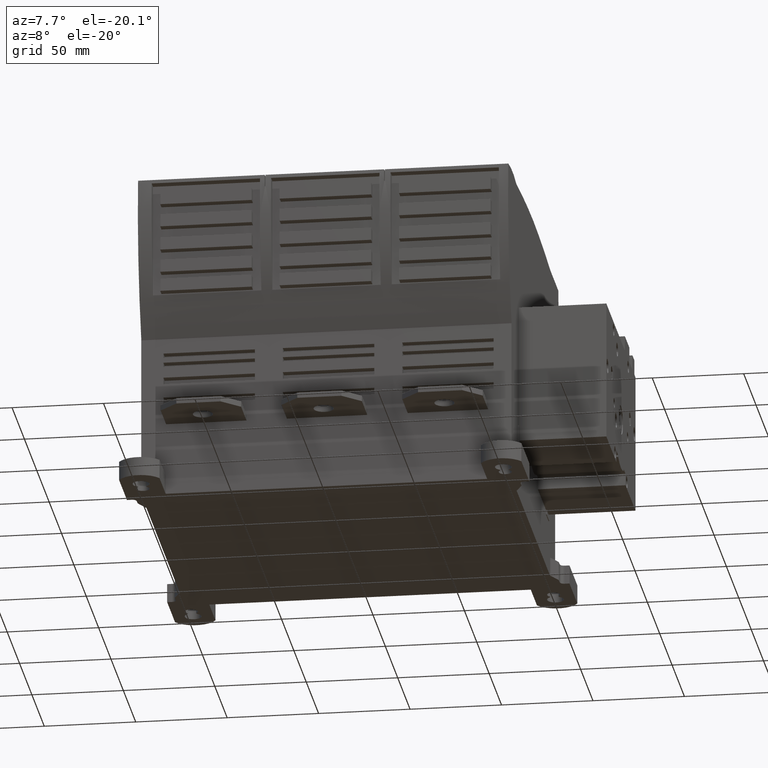
[diagram: clean part render]
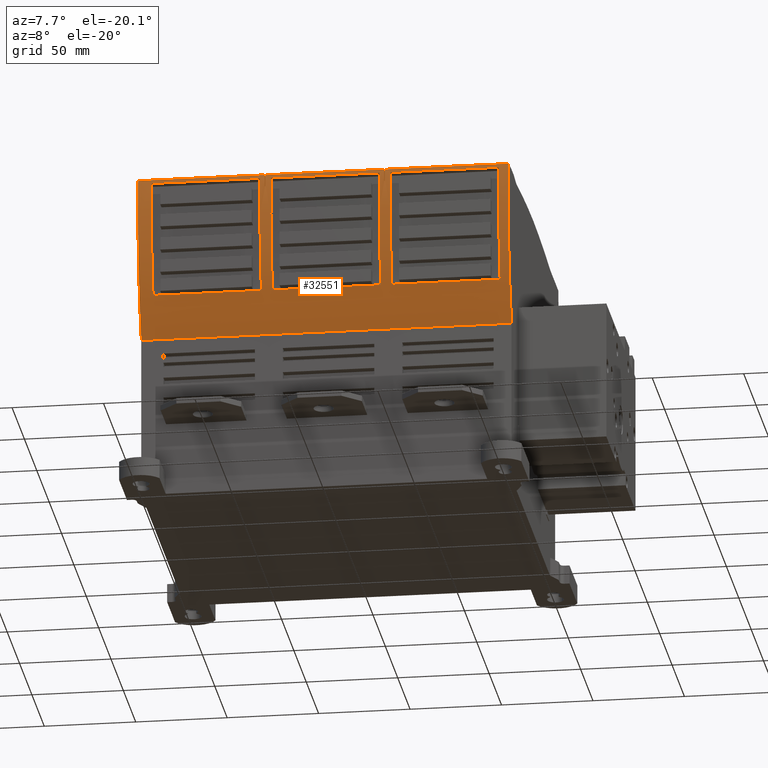
[diagram: same view with one face highlighted and labeled with its STEP entity id]
A machine part, auxiliary view. The second image highlights one B-rep face of the part: STEP entity #32551.
In plain terms, the highlighted cylindrical surface (partial cylindrical patch) has radius 180.086 mm, axis along (1, 0, 0).
Its self-contained STEP definition (entity closure, byte-faithful):
#1404=CARTESIAN_POINT('',(-1.01213E2,7.798528822828E1,6.952712063808E1));
#1405=DIRECTION('',(-1.E0,0.E0,0.E0));
#1406=DIRECTION('',(0.E0,-9.224664228662E-1,-3.860773221576E-1));
#1407=AXIS2_PLACEMENT_3D('',#1404,#1405,#1406);
#7042=DIRECTION('',(-1.E0,0.E0,0.E0));
#7043=VECTOR('',#7042,6.9207E1);
#7044=CARTESIAN_POINT('',(-3.2006E1,-1.01214E2,8.7376E1));
#7045=LINE('',#7044,#7043);
#7060=DIRECTION('',(1.E0,0.E0,0.E0));
#7061=VECTOR('',#7060,5.9278E1);
#7062=CARTESIAN_POINT('',(3.6782E1,-9.5928E1,2.278168691857E1));
#7063=LINE('',#7062,#7061);
#7064=CARTESIAN_POINT('',(9.606E1,7.798528822828E1,6.952712063808E1));
#7065=DIRECTION('',(1.E0,0.E0,0.E0));
#7066=DIRECTION('',(0.E0,-9.961198313149E-1,8.800728186488E-2));
#7067=AXIS2_PLACEMENT_3D('',#7064,#7065,#7066);
#7069=DIRECTION('',(1.E0,0.E0,0.E0));
#7070=VECTOR('',#7069,5.9278E1);
#7071=CARTESIAN_POINT('',(3.6782E1,-1.014019477139E2,8.5376E1));
#7072=LINE('',#7071,#7070);
#7073=CARTESIAN_POINT('',(3.6782E1,7.798528822828E1,6.952712063808E1));
#7074=DIRECTION('',(1.E0,0.E0,0.E0));
#7075=DIRECTION('',(0.E0,-9.961198313149E-1,8.800728186488E-2));
#7076=AXIS2_PLACEMENT_3D('',#7073,#7074,#7075);
#7078=DIRECTION('',(1.E0,0.E0,0.E0));
#7079=VECTOR('',#7078,5.9278E1);
#7080=CARTESIAN_POINT('',(-2.8498E1,-9.5928E1,2.278168691857E1));
#7081=LINE('',#7080,#7079);
#7082=CARTESIAN_POINT('',(3.078E1,7.798528822828E1,6.952712063808E1));
#7083=DIRECTION('',(1.E0,0.E0,0.E0));
#7084=DIRECTION('',(0.E0,-9.961198313149E-1,8.800728186488E-2));
#7085=AXIS2_PLACEMENT_3D('',#7082,#7083,#7084);
#7087=DIRECTION('',(1.E0,0.E0,0.E0));
#7088=VECTOR('',#7087,5.9278E1);
#7089=CARTESIAN_POINT('',(-2.8498E1,-1.014019477139E2,8.5376E1));
#7090=LINE('',#7089,#7088);
#7091=CARTESIAN_POINT('',(-2.8498E1,7.798528822828E1,6.952712063808E1));
#7092=DIRECTION('',(1.E0,0.E0,0.E0));
#7093=DIRECTION('',(0.E0,-9.961198313149E-1,8.800728186488E-2));
#7094=AXIS2_PLACEMENT_3D('',#7091,#7092,#7093);
#7096=DIRECTION('',(1.E0,0.E0,0.E0));
#7097=VECTOR('',#7096,5.9278E1);
#7098=CARTESIAN_POINT('',(-9.3778E1,-9.5928E1,2.278168691857E1));
#7099=LINE('',#7098,#7097);
#7100=CARTESIAN_POINT('',(-3.45E1,7.798528822828E1,6.952712063808E1));
#7101=DIRECTION('',(1.E0,0.E0,0.E0));
#7102=DIRECTION('',(0.E0,-9.961198313149E-1,8.800728186488E-2));
#7103=AXIS2_PLACEMENT_3D('',#7100,#7101,#7102);
#7105=DIRECTION('',(1.E0,0.E0,0.E0));
#7106=VECTOR('',#7105,5.9278E1);
#7107=CARTESIAN_POINT('',(-9.3778E1,-1.014019477139E2,8.5376E1));
#7108=LINE('',#7107,#7106);
#7109=CARTESIAN_POINT('',(-9.3778E1,7.798528822828E1,6.952712063808E1));
#7110=DIRECTION('',(1.E0,0.E0,0.E0));
#7111=DIRECTION('',(0.E0,-9.961198313149E-1,8.800728186488E-2));
#7112=AXIS2_PLACEMENT_3D('',#7109,#7110,#7111);
#7114=DIRECTION('',(1.E0,0.E0,0.E0));
#7115=VECTOR('',#7114,6.7431E1);
#7116=CARTESIAN_POINT('',(3.3782E1,-1.01214E2,8.7376E1));
#7117=LINE('',#7116,#7115);
#7118=CARTESIAN_POINT('',(-3.2006E1,7.798528822828E1,6.952712063808E1));
#7119=DIRECTION('',(1.E0,0.E0,0.E0));
#7120=DIRECTION('',(0.E0,-9.950761759842E-1,9.911308686915E-2));
#7121=AXIS2_PLACEMENT_3D('',#7118,#7119,#7120);
#7123=DIRECTION('',(1.E0,0.E0,0.E0));
#7124=VECTOR('',#7123,5.08E-1);
#7125=CARTESIAN_POINT('',(-3.2006E1,-1.017624926347E2,8.055901398503E1));
#7126=LINE('',#7125,#7124);
#7127=CARTESIAN_POINT('',(-3.1498E1,7.798528822828E1,6.952712063808E1));
#7128=DIRECTION('',(1.E0,0.E0,0.E0));
#7129=DIRECTION('',(0.E0,-9.950761759842E-1,9.911308686915E-2));
#7130=AXIS2_PLACEMENT_3D('',#7127,#7128,#7129);
#7132=DIRECTION('',(1.E0,0.E0,0.E0));
#7133=VECTOR('',#7132,6.4772E1);
#7134=CARTESIAN_POINT('',(-3.1498E1,-1.01214E2,8.7376E1));
#7135=LINE('',#7134,#7133);
#7136=CARTESIAN_POINT('',(3.3274E1,7.798528822828E1,6.952712063808E1));
#7137=DIRECTION('',(1.E0,0.E0,0.E0));
#7138=DIRECTION('',(0.E0,-9.950761759842E-1,9.911308686915E-2));
#7139=AXIS2_PLACEMENT_3D('',#7136,#7137,#7138);
#7141=DIRECTION('',(1.E0,0.E0,0.E0));
#7142=VECTOR('',#7141,5.08E-1);
#7143=CARTESIAN_POINT('',(3.3274E1,-1.017624926347E2,8.055901398503E1));
#7144=LINE('',#7143,#7142);
#7145=CARTESIAN_POINT('',(3.3782E1,7.798528822828E1,6.952712063808E1));
#7146=DIRECTION('',(1.E0,0.E0,0.E0));
#7147=DIRECTION('',(0.E0,-9.950761759842E-1,9.911308686915E-2));
#7148=AXIS2_PLACEMENT_3D('',#7145,#7146,#7147);
#7938=CARTESIAN_POINT('',(1.01213E2,7.798528822828E1,6.952712063808E1));
#7939=DIRECTION('',(1.E0,0.E0,0.E0));
#7940=DIRECTION('',(0.E0,-9.950761759842E-1,9.911308686915E-2));
#7941=AXIS2_PLACEMENT_3D('',#7938,#7939,#7940);
#8319=DIRECTION('',(1.E0,0.E0,0.E0));
#8320=VECTOR('',#8319,2.02426E2);
#8321=CARTESIAN_POINT('',(-1.01213E2,-8.8138E1,1.131086828675E-13));
#8322=LINE('',#8321,#8320);
#20980=CARTESIAN_POINT('',(3.3782E1,-1.01214E2,8.7376E1));
#20981=VERTEX_POINT('',#20980);
#20982=CARTESIAN_POINT('',(3.3274E1,-1.01214E2,8.7376E1));
#20983=VERTEX_POINT('',#20982);
#20984=CARTESIAN_POINT('',(3.3782E1,-1.017624926347E2,8.055901398503E1));
#20985=VERTEX_POINT('',#20984);
#20986=CARTESIAN_POINT('',(3.3274E1,-1.017624926347E2,8.055901398503E1));
#20987=VERTEX_POINT('',#20986);
#21028=CARTESIAN_POINT('',(-3.1498E1,-1.01214E2,8.7376E1));
#21029=VERTEX_POINT('',#21028);
#21030=CARTESIAN_POINT('',(-3.2006E1,-1.01214E2,8.7376E1));
#21031=VERTEX_POINT('',#21030);
#21032=CARTESIAN_POINT('',(-3.1498E1,-1.017624926347E2,8.055901398503E1));
#21033=VERTEX_POINT('',#21032);
#21034=CARTESIAN_POINT('',(-3.2006E1,-1.017624926347E2,8.055901398503E1));
#21035=VERTEX_POINT('',#21034);
#21350=CARTESIAN_POINT('',(9.606E1,-9.5928E1,2.278168691857E1));
#21351=VERTEX_POINT('',#21350);
#21352=CARTESIAN_POINT('',(3.6782E1,-9.5928E1,2.278168691857E1));
#21353=VERTEX_POINT('',#21352);
#21354=CARTESIAN_POINT('',(3.6782E1,-1.014019477139E2,8.5376E1));
#21355=VERTEX_POINT('',#21354);
#21356=CARTESIAN_POINT('',(9.606E1,-1.014019477139E2,8.5376E1));
#21357=VERTEX_POINT('',#21356);
#21362=CARTESIAN_POINT('',(3.078E1,-9.5928E1,2.278168691857E1));
#21363=VERTEX_POINT('',#21362);
#21364=CARTESIAN_POINT('',(-2.8498E1,-9.5928E1,2.278168691857E1));
#21365=VERTEX_POINT('',#21364);
#21366=CARTESIAN_POINT('',(-2.8498E1,-1.014019477139E2,8.5376E1));
#21367=VERTEX_POINT('',#21366);
#21368=CARTESIAN_POINT('',(3.078E1,-1.014019477139E2,8.5376E1));
#21369=VERTEX_POINT('',#21368);
#21374=CARTESIAN_POINT('',(-3.45E1,-9.5928E1,2.278168691857E1));
#21375=VERTEX_POINT('',#21374);
#21376=CARTESIAN_POINT('',(-9.3778E1,-9.5928E1,2.278168691857E1));
#21377=VERTEX_POINT('',#21376);
#21378=CARTESIAN_POINT('',(-9.3778E1,-1.014019477139E2,8.5376E1));
#21379=VERTEX_POINT('',#21378);
#21380=CARTESIAN_POINT('',(-3.45E1,-1.014019477139E2,8.5376E1));
#21381=VERTEX_POINT('',#21380);
#26858=CARTESIAN_POINT('',(-1.01213E2,-8.8138E1,1.136868377216E-13));
#26859=CARTESIAN_POINT('',(-1.01213E2,-1.01214E2,8.7376E1));
#26860=VERTEX_POINT('',#26858);
#26861=VERTEX_POINT('',#26859);
#26890=CARTESIAN_POINT('',(1.01213E2,-1.01214E2,8.7376E1));
#26891=VERTEX_POINT('',#26890);
#26892=CARTESIAN_POINT('',(1.01213E2,-8.8138E1,8.526512829121E-14));
#26893=VERTEX_POINT('',#26892);
#32497=CARTESIAN_POINT('',(-9.906E1,7.798528822828E1,6.952712063808E1));
#32498=DIRECTION('',(1.E0,0.E0,0.E0));
#32499=DIRECTION('',(0.E0,0.E0,-1.E0));
#32500=AXIS2_PLACEMENT_3D('',#32497,#32498,#32499);
#32501=CYLINDRICAL_SURFACE('',#32500,1.80086E2);
#32502=ORIENTED_EDGE('',*,*,#32491,.T.);
#32504=ORIENTED_EDGE('',*,*,#32503,.T.);
#32506=ORIENTED_EDGE('',*,*,#32505,.F.);
#32507=ORIENTED_EDGE('',*,*,#28866,.T.);
#32508=ORIENTED_EDGE('',*,*,#32474,.F.);
#32510=ORIENTED_EDGE('',*,*,#32509,.T.);
#32512=ORIENTED_EDGE('',*,*,#32511,.T.);
#32513=ORIENTED_EDGE('',*,*,#30958,.F.);
#32514=ORIENTED_EDGE('',*,*,#32464,.T.);
#32515=ORIENTED_EDGE('',*,*,#29407,.T.);
#32517=ORIENTED_EDGE('',*,*,#32516,.T.);
#32518=ORIENTED_EDGE('',*,*,#29449,.F.);
#32519=EDGE_LOOP('',(#32502,#32504,#32506,#32507,#32508,#32510,#32512,#32513,
#32514,#32515,#32517,#32518));
#32520=FACE_OUTER_BOUND('',#32519,.F.);
#32522=ORIENTED_EDGE('',*,*,#32521,.T.);
#32524=ORIENTED_EDGE('',*,*,#32523,.F.);
#32526=ORIENTED_EDGE('',*,*,#32525,.F.);
#32528=ORIENTED_EDGE('',*,*,#32527,.T.);
#32529=EDGE_LOOP('',(#32522,#32524,#32526,#32528));
#32530=FACE_BOUND('',#32529,.F.);
#32532=ORIENTED_EDGE('',*,*,#32531,.T.);
#32534=ORIENTED_EDGE('',*,*,#32533,.F.);
#32536=ORIENTED_EDGE('',*,*,#32535,.F.);
#32538=ORIENTED_EDGE('',*,*,#32537,.T.);
#32539=EDGE_LOOP('',(#32532,#32534,#32536,#32538));
#32540=FACE_BOUND('',#32539,.F.);
#32542=ORIENTED_EDGE('',*,*,#32541,.T.);
#32544=ORIENTED_EDGE('',*,*,#32543,.F.);
#32546=ORIENTED_EDGE('',*,*,#32545,.F.);
#32548=ORIENTED_EDGE('',*,*,#32547,.T.);
#32549=EDGE_LOOP('',(#32542,#32544,#32546,#32548));
#32550=FACE_BOUND('',#32549,.F.);
#32551=ADVANCED_FACE('',(#32520,#32530,#32540,#32550),#32501,.T.);
#1408=CIRCLE('',#1407,1.80086E2);
#7068=CIRCLE('',#7067,1.80086E2);
#7077=CIRCLE('',#7076,1.80086E2);
#7086=CIRCLE('',#7085,1.80086E2);
#7095=CIRCLE('',#7094,1.80086E2);
#7104=CIRCLE('',#7103,1.80086E2);
#7113=CIRCLE('',#7112,1.80086E2);
#7122=CIRCLE('',#7121,1.80086E2);
#7131=CIRCLE('',#7130,1.80086E2);
#7140=CIRCLE('',#7139,1.80086E2);
#7149=CIRCLE('',#7148,1.80086E2);
#7942=CIRCLE('',#7941,1.80086E2);
#28866=EDGE_CURVE('',#26860,#26861,#1408,.T.);
#29407=EDGE_CURVE('',#20983,#20987,#7140,.T.);
#29449=EDGE_CURVE('',#20981,#20985,#7149,.T.);
#30958=EDGE_CURVE('',#21029,#21033,#7131,.T.);
#32464=EDGE_CURVE('',#21029,#20983,#7135,.T.);
#32474=EDGE_CURVE('',#21031,#26861,#7045,.T.);
#32491=EDGE_CURVE('',#20981,#26891,#7117,.T.);
#32503=EDGE_CURVE('',#26891,#26893,#7942,.T.);
#32505=EDGE_CURVE('',#26860,#26893,#8322,.T.);
#32509=EDGE_CURVE('',#21031,#21035,#7122,.T.);
#32511=EDGE_CURVE('',#21035,#21033,#7126,.T.);
#32516=EDGE_CURVE('',#20987,#20985,#7144,.T.);
#32521=EDGE_CURVE('',#21353,#21351,#7063,.T.);
#32523=EDGE_CURVE('',#21357,#21351,#7068,.T.);
#32525=EDGE_CURVE('',#21355,#21357,#7072,.T.);
#32527=EDGE_CURVE('',#21355,#21353,#7077,.T.);
#32531=EDGE_CURVE('',#21365,#21363,#7081,.T.);
#32533=EDGE_CURVE('',#21369,#21363,#7086,.T.);
#32535=EDGE_CURVE('',#21367,#21369,#7090,.T.);
#32537=EDGE_CURVE('',#21367,#21365,#7095,.T.);
#32541=EDGE_CURVE('',#21377,#21375,#7099,.T.);
#32543=EDGE_CURVE('',#21381,#21375,#7104,.T.);
#32545=EDGE_CURVE('',#21379,#21381,#7108,.T.);
#32547=EDGE_CURVE('',#21379,#21377,#7113,.T.);